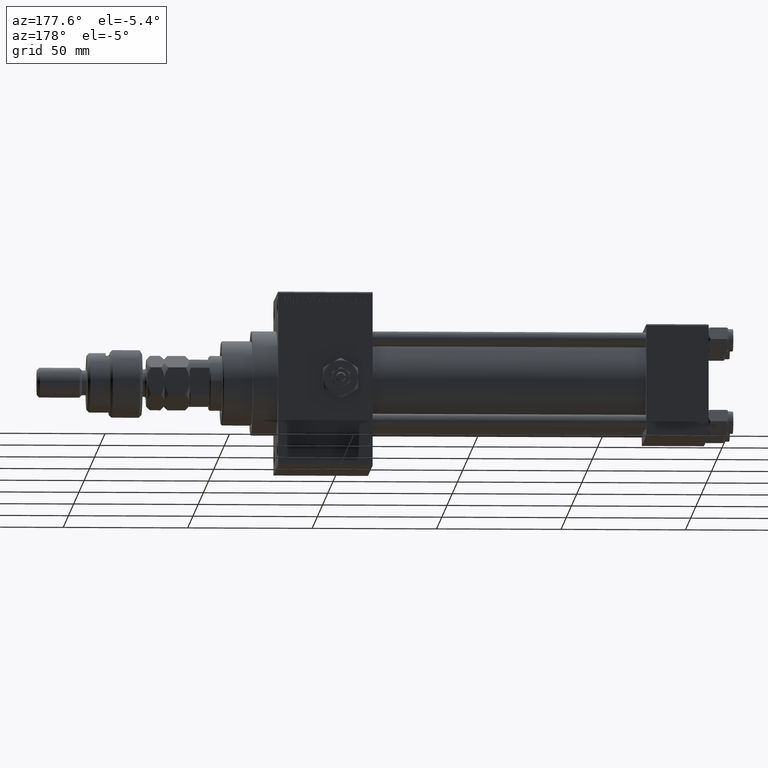
[diagram: clean part render]
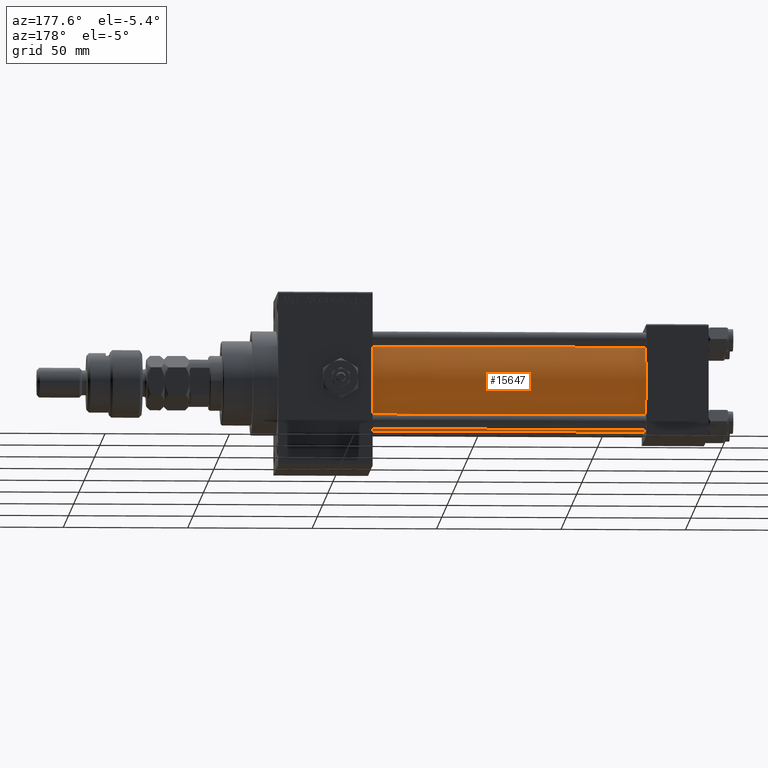
[diagram: same view with one face highlighted and labeled with its STEP entity id]
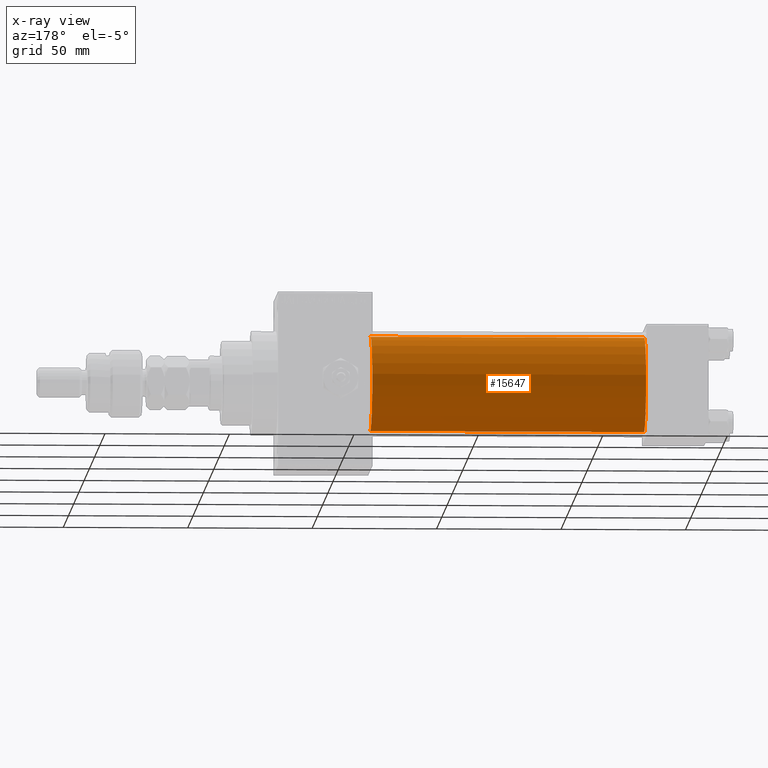
[diagram: x-ray of the same camera — body ghosted, the highlighted face saturated]
A machine part, auxiliary view. The second image highlights one B-rep face of the part: STEP entity #15647.
The next image is the same camera in x-ray: the body ghosted, the highlighted face saturated — about 0% of this face is hidden behind the body in this view.
In plain terms, the highlighted cylindrical surface (partial cylindrical patch) has radius 19 mm, axis along (-1, -0, -0).
Its self-contained STEP definition (entity closure, byte-faithful):
#405 = VERTEX_POINT ( 'NONE', #4491 ) ;
#1517 = EDGE_CURVE ( 'NONE', #14279, #5020, #32683, .T. ) ;
#2417 = VECTOR ( 'NONE', #35144, 1000.000000000000000 ) ;
#3437 = CARTESIAN_POINT ( 'NONE',  ( 135.0000000000000000, -2.752562955852396712E-16, -19.00000000000000000 ) ) ;
#4079 = ORIENTED_EDGE ( 'NONE', *, *, #1517, .F. ) ;
#4232 = CYLINDRICAL_SURFACE ( 'NONE', #11536, 19.00000000000000000 ) ;
#4491 = CARTESIAN_POINT ( 'NONE',  ( 24.99999999999999289, -2.602085213965210642E-15, 19.00000000000000000 ) ) ;
#5020 = VERTEX_POINT ( 'NONE', #45177 ) ;
#7600 = CARTESIAN_POINT ( 'NONE',  ( 135.0000000000000000, -2.752562955852396712E-16, -19.00000000000000000 ) ) ;
#7867 = DIRECTION ( 'NONE',  ( 0.000000000000000000, 0.000000000000000000, 1.000000000000000000 ) ) ;
#9079 = DIRECTION ( 'NONE',  ( 1.000000000000000000, 0.000000000000000000, 0.000000000000000000 ) ) ;
#11536 = AXIS2_PLACEMENT_3D ( 'NONE', #47418, #19044, #7867 ) ;
#14279 = VERTEX_POINT ( 'NONE', #7600 ) ;
#14431 = LINE ( 'NONE', #42771, #16471 ) ;
#15647 = ADVANCED_FACE ( 'NONE', ( #23456 ), #4232, .T. ) ;
#16471 = VECTOR ( 'NONE', #34448, 1000.000000000000000 ) ;
#16844 = EDGE_LOOP ( 'NONE', ( #4079, #20969, #41511, #17019 ) ) ;
#17019 = ORIENTED_EDGE ( 'NONE', *, *, #27651, .F. ) ;
#18514 = CARTESIAN_POINT ( 'NONE',  ( 24.99999999999999289, -2.602085213965210642E-15, 0.000000000000000000 ) ) ;
#19044 = DIRECTION ( 'NONE',  ( -1.000000000000000000, -0.000000000000000000, -0.000000000000000000 ) ) ;
#19858 = CIRCLE ( 'NONE', #49768, 19.00000000000000000 ) ;
#20969 = ORIENTED_EDGE ( 'NONE', *, *, #49290, .T. ) ;
#23456 = FACE_OUTER_BOUND ( 'NONE', #16844, .T. ) ;
#24381 = VERTEX_POINT ( 'NONE', #48267 ) ;
#27651 = EDGE_CURVE ( 'NONE', #5020, #405, #14431, .T. ) ;
#30205 = DIRECTION ( 'NONE',  ( 0.000000000000000000, 0.000000000000000000, 1.000000000000000000 ) ) ;
#32683 = CIRCLE ( 'NONE', #43520, 19.00000000000000000 ) ;
#34448 = DIRECTION ( 'NONE',  ( -1.000000000000000000, -0.000000000000000000, -0.000000000000000000 ) ) ;
#35144 = DIRECTION ( 'NONE',  ( -1.000000000000000000, -0.000000000000000000, -0.000000000000000000 ) ) ;
#36394 = CARTESIAN_POINT ( 'NONE',  ( 135.0000000000000000, -2.602085213965210642E-15, 0.000000000000000000 ) ) ;
#41511 = ORIENTED_EDGE ( 'NONE', *, *, #49179, .T. ) ;
#42771 = CARTESIAN_POINT ( 'NONE',  ( 135.0000000000000000, -2.602085213965210642E-15, 19.00000000000000000 ) ) ;
#43520 = AXIS2_PLACEMENT_3D ( 'NONE', #36394, #9079, #44973 ) ;
#44973 = DIRECTION ( 'NONE',  ( 0.000000000000000000, 0.000000000000000000, -1.000000000000000000 ) ) ;
#45177 = CARTESIAN_POINT ( 'NONE',  ( 135.0000000000000000, -2.602085213965210642E-15, 19.00000000000000000 ) ) ;
#46614 = LINE ( 'NONE', #3437, #2417 ) ;
#47418 = CARTESIAN_POINT ( 'NONE',  ( 135.0000000000000000, -2.602085213965210642E-15, 0.000000000000000000 ) ) ;
#48267 = CARTESIAN_POINT ( 'NONE',  ( 24.99999999999999289, -2.752562955852396712E-16, -19.00000000000000000 ) ) ;
#49179 = EDGE_CURVE ( 'NONE', #24381, #405, #19858, .T. ) ;
#49290 = EDGE_CURVE ( 'NONE', #14279, #24381, #46614, .T. ) ;
#49768 = AXIS2_PLACEMENT_3D ( 'NONE', #18514, #50273, #30205 ) ;
#50273 = DIRECTION ( 'NONE',  ( 1.000000000000000000, -0.000000000000000000, 0.000000000000000000 ) ) ;